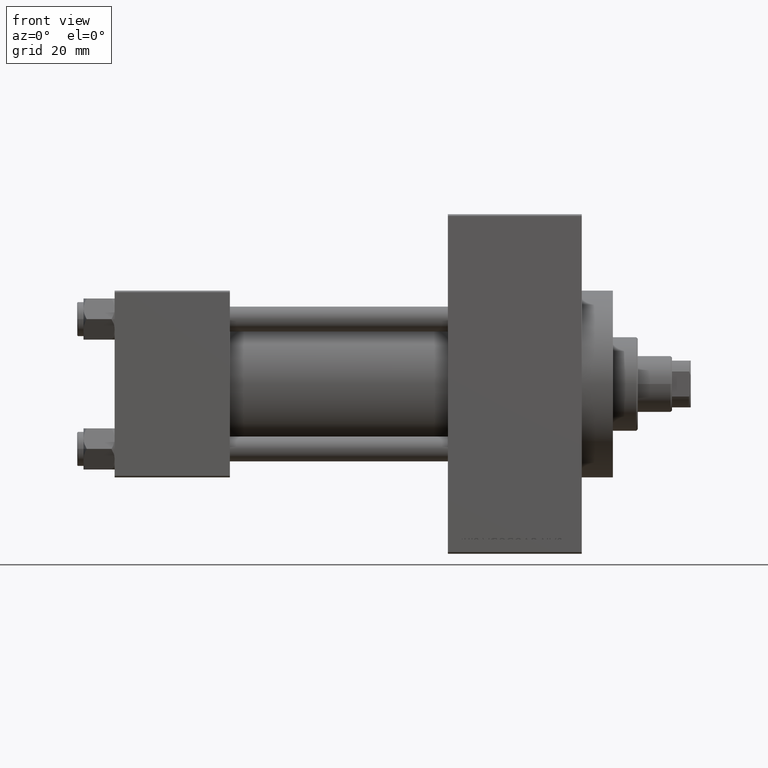
[diagram: clean part render]
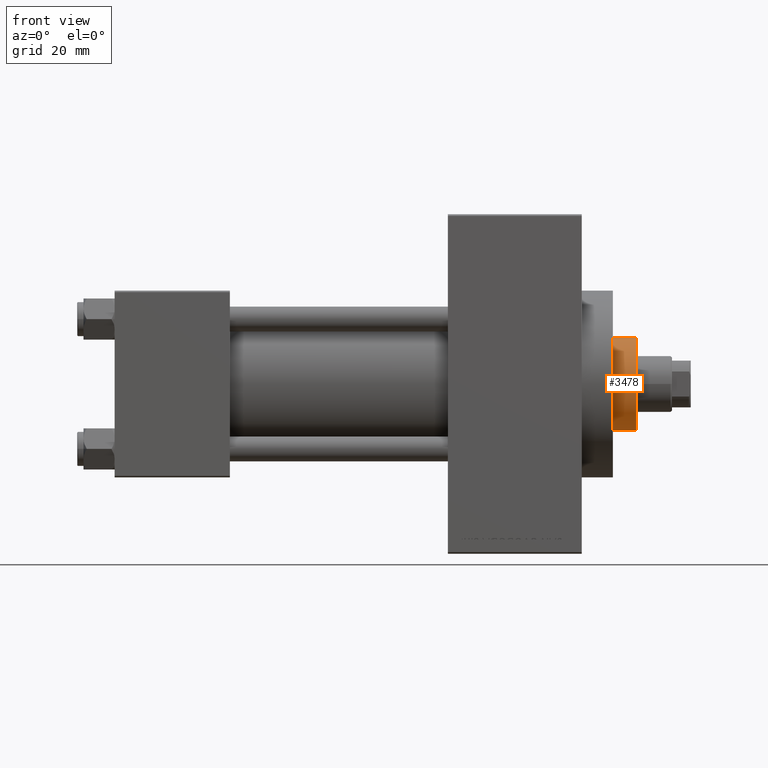
[diagram: same view with one face highlighted and labeled with its STEP entity id]
A machine part, front view. The second image highlights one B-rep face of the part: STEP entity #3478.
In plain terms, the highlighted cylindrical surface (partial cylindrical patch) has radius 15 mm, axis along (-1, 0, 0).
Its self-contained STEP definition (entity closure, byte-faithful):
#401 = FACE_OUTER_BOUND ( 'NONE', #41016, .T. ) ;
#2638 = DIRECTION ( 'NONE',  ( 1.000000000000000000, 0.000000000000000000, 0.000000000000000000 ) ) ;
#3478 = ADVANCED_FACE ( 'NONE', ( #401 ), #14864, .T. ) ;
#4316 = CARTESIAN_POINT ( 'NONE',  ( -15.00000000000000000, 0.000000000000000000, 43.25999999999999801 ) ) ;
#5001 = ORIENTED_EDGE ( 'NONE', *, *, #18390, .T. ) ;
#5677 = EDGE_CURVE ( 'NONE', #15727, #48633, #24057, .T. ) ;
#6102 = AXIS2_PLACEMENT_3D ( 'NONE', #25330, #40038, #2638 ) ;
#6436 = CARTESIAN_POINT ( 'NONE',  ( 15.00000000000000000, 1.836970198721029589E-15, 51.25999999999999801 ) ) ;
#10521 = EDGE_CURVE ( 'NONE', #18138, #48633, #18093, .T. ) ;
#12743 = CARTESIAN_POINT ( 'NONE',  ( 15.00000000000000000, 1.836970198721029589E-15, 50.75999999999998380 ) ) ;
#14148 = DIRECTION ( 'NONE',  ( -0.000000000000000000, -0.000000000000000000, -1.000000000000000000 ) ) ;
#14864 = CYLINDRICAL_SURFACE ( 'NONE', #40637, 15.00000000000000000 ) ;
#15727 = VERTEX_POINT ( 'NONE', #37217 ) ;
#18093 = LINE ( 'NONE', #44038, #25776 ) ;
#18138 = VERTEX_POINT ( 'NONE', #45301 ) ;
#18390 = EDGE_CURVE ( 'NONE', #18138, #24265, #29198, .T. ) ;
#19494 = CARTESIAN_POINT ( 'NONE',  ( 0.000000000000000000, 0.000000000000000000, 43.25999999999999801 ) ) ;
#20058 = AXIS2_PLACEMENT_3D ( 'NONE', #19494, #45678, #46411 ) ;
#21847 = DIRECTION ( 'NONE',  ( -0.000000000000000000, -0.000000000000000000, -1.000000000000000000 ) ) ;
#24057 = CIRCLE ( 'NONE', #20058, 15.00000000000000000 ) ;
#24265 = VERTEX_POINT ( 'NONE', #12743 ) ;
#25330 = CARTESIAN_POINT ( 'NONE',  ( 0.000000000000000000, 0.000000000000000000, 50.75999999999998380 ) ) ;
#25776 = VECTOR ( 'NONE', #21847, 1000.000000000000000 ) ;
#29198 = CIRCLE ( 'NONE', #6102, 15.00000000000000000 ) ;
#30331 = CARTESIAN_POINT ( 'NONE',  ( 0.000000000000000000, 0.000000000000000000, 51.25999999999999801 ) ) ;
#31197 = VECTOR ( 'NONE', #14148, 1000.000000000000000 ) ;
#36799 = ORIENTED_EDGE ( 'NONE', *, *, #39148, .T. ) ;
#37217 = CARTESIAN_POINT ( 'NONE',  ( 15.00000000000000000, 1.836970198721029589E-15, 43.25999999999999801 ) ) ;
#38052 = DIRECTION ( 'NONE',  ( -1.000000000000000000, 0.000000000000000000, 0.000000000000000000 ) ) ;
#39148 = EDGE_CURVE ( 'NONE', #24265, #15727, #48305, .T. ) ;
#39681 = ORIENTED_EDGE ( 'NONE', *, *, #10521, .F. ) ;
#40038 = DIRECTION ( 'NONE',  ( 0.000000000000000000, 0.000000000000000000, -1.000000000000000000 ) ) ;
#40637 = AXIS2_PLACEMENT_3D ( 'NONE', #30331, #45286, #38052 ) ;
#41016 = EDGE_LOOP ( 'NONE', ( #5001, #36799, #46382, #39681 ) ) ;
#44038 = CARTESIAN_POINT ( 'NONE',  ( -15.00000000000000000, 0.000000000000000000, 51.25999999999999801 ) ) ;
#45286 = DIRECTION ( 'NONE',  ( -0.000000000000000000, -0.000000000000000000, -1.000000000000000000 ) ) ;
#45301 = CARTESIAN_POINT ( 'NONE',  ( -15.00000000000000000, 0.000000000000000000, 50.75999999999998380 ) ) ;
#45678 = DIRECTION ( 'NONE',  ( 0.000000000000000000, 0.000000000000000000, 1.000000000000000000 ) ) ;
#46382 = ORIENTED_EDGE ( 'NONE', *, *, #5677, .T. ) ;
#46411 = DIRECTION ( 'NONE',  ( 1.000000000000000000, 0.000000000000000000, 0.000000000000000000 ) ) ;
#48305 = LINE ( 'NONE', #6436, #31197 ) ;
#48633 = VERTEX_POINT ( 'NONE', #4316 ) ;